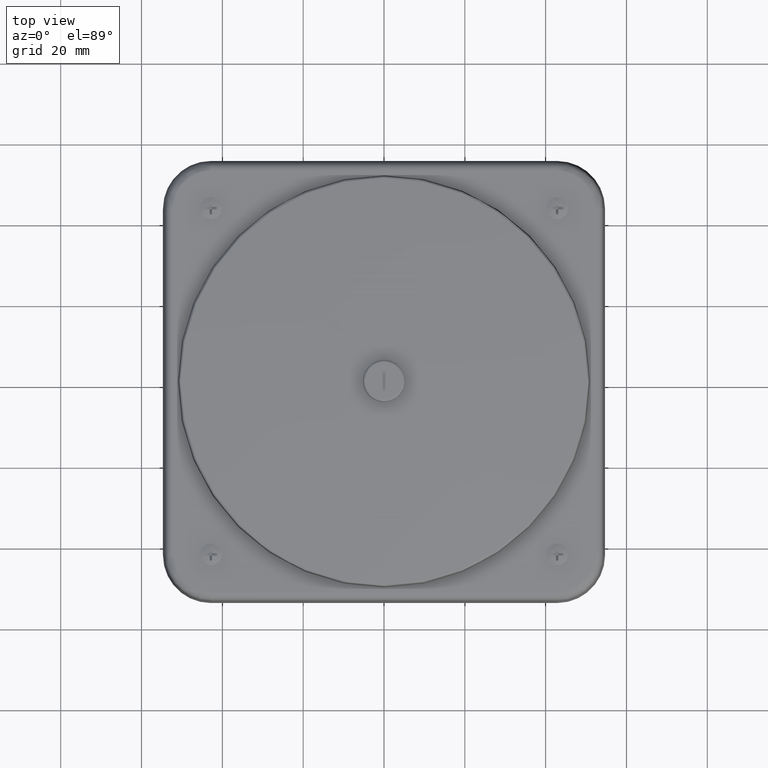
[diagram: clean part render]
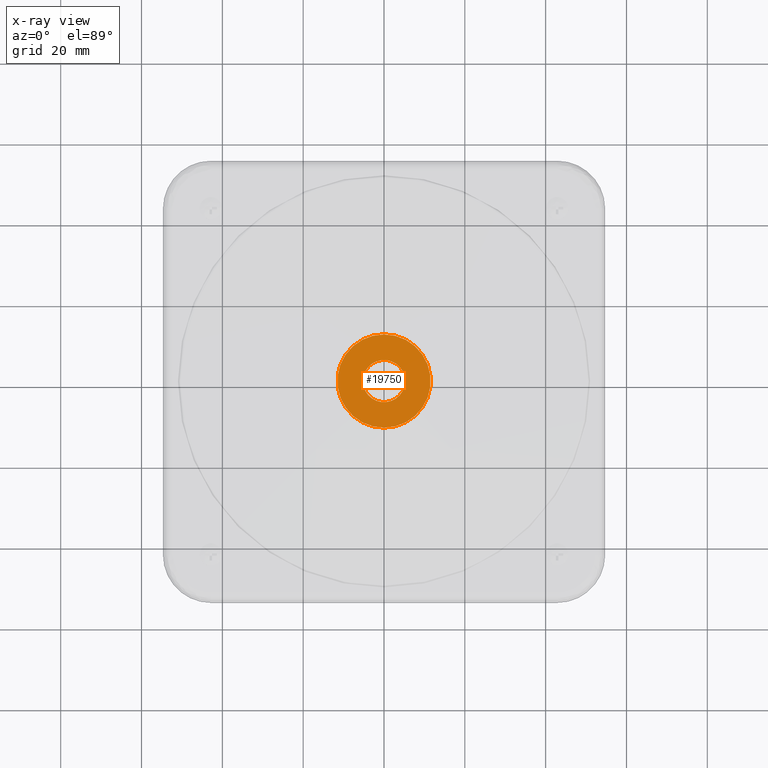
[diagram: x-ray — body ghosted, one internal face saturated and labeled with its STEP entity id]
A machine part, top view, then the same camera in x-ray: the body is ghosted and one INTERNAL B-rep face — a face not visible from any outside direction — is saturated and labeled: STEP entity #19750.
In plain terms, the highlighted planar face has unit normal (0, 0, 1).
Its self-contained STEP definition (entity closure, byte-faithful):
#372 = EDGE_LOOP ( 'NONE', ( #10909, #10132 ) ) ;
#617 = VERTEX_POINT ( 'NONE', #16533 ) ;
#931 = DIRECTION ( 'NONE',  ( 0.000000000000000000, 0.000000000000000000, 1.000000000000000000 ) ) ;
#1157 = DIRECTION ( 'NONE',  ( 0.000000000000000000, 0.000000000000000000, -1.000000000000000000 ) ) ;
#2047 = AXIS2_PLACEMENT_3D ( 'NONE', #19436, #1157, #6202 ) ;
#2175 = EDGE_LOOP ( 'NONE', ( #6548, #20258 ) ) ;
#2608 = AXIS2_PLACEMENT_3D ( 'NONE', #3167, #16200, #19375 ) ;
#2792 = DIRECTION ( 'NONE',  ( 1.000000000000000000, 0.000000000000000000, 0.000000000000000000 ) ) ;
#3167 = CARTESIAN_POINT ( 'NONE',  ( -2.731847993666074838E-15, -5.435836013389566810E-16, 2.559339538721059348 ) ) ;
#3424 = CARTESIAN_POINT ( 'NONE',  ( 2.956759690072473427E-10, -0.4544527542132097420, 2.559339538721059348 ) ) ;
#3682 = EDGE_CURVE ( 'NONE', #3976, #9559, #10302, .T. ) ;
#3976 = VERTEX_POINT ( 'NONE', #14012 ) ;
#4025 = CARTESIAN_POINT ( 'NONE',  ( -2.731847993664263613E-15, -5.463695987328543200E-16, 2.559339538721059348 ) ) ;
#4164 = DIRECTION ( 'NONE',  ( 0.000000000000000000, 0.000000000000000000, -1.000000000000000000 ) ) ;
#4584 = CARTESIAN_POINT ( 'NONE',  ( -2.797412345512204431E-15, 2.800144193505869651E-15, 2.559339538721795204 ) ) ;
#4598 = AXIS2_PLACEMENT_3D ( 'NONE', #4025, #931, #2792 ) ;
#4915 = CIRCLE ( 'NONE', #12288, 0.4544527542132086317 ) ;
#5865 = PLANE ( 'NONE',  #4598 ) ;
#6202 = DIRECTION ( 'NONE',  ( -1.000000000000000000, 0.000000000000000000, 0.000000000000000000 ) ) ;
#6548 = ORIENTED_EDGE ( 'NONE', *, *, #21061, .T. ) ;
#7886 = FACE_OUTER_BOUND ( 'NONE', #2175, .T. ) ;
#9559 = VERTEX_POINT ( 'NONE', #3424 ) ;
#10094 = CIRCLE ( 'NONE', #17403, 0.2058933543126791610 ) ;
#10132 = ORIENTED_EDGE ( 'NONE', *, *, #17254, .T. ) ;
#10302 = CIRCLE ( 'NONE', #2608, 0.4544527542132086317 ) ;
#10846 = DIRECTION ( 'NONE',  ( 1.195140789863510099E-25, -1.836909530700119911E-16, 1.000000000000000000 ) ) ;
#10909 = ORIENTED_EDGE ( 'NONE', *, *, #17692, .T. ) ;
#12288 = AXIS2_PLACEMENT_3D ( 'NONE', #19142, #10846, #15855 ) ;
#14012 = CARTESIAN_POINT ( 'NONE',  ( -2.956814883576456901E-10, 0.4544527542132086317, 2.559339538721059348 ) ) ;
#14554 = FACE_BOUND ( 'NONE', #372, .T. ) ;
#15855 = DIRECTION ( 'NONE',  ( 0.000000000000000000, 1.000000000000000000, 0.000000000000000000 ) ) ;
#16200 = DIRECTION ( 'NONE',  ( 1.195140789863510099E-25, -1.836909530700119911E-16, 1.000000000000000000 ) ) ;
#16533 = CARTESIAN_POINT ( 'NONE',  ( -0.2058933543126819643, 2.800144193505869651E-15, 2.559339538721795204 ) ) ;
#17254 = EDGE_CURVE ( 'NONE', #17394, #617, #10094, .T. ) ;
#17394 = VERTEX_POINT ( 'NONE', #19901 ) ;
#17403 = AXIS2_PLACEMENT_3D ( 'NONE', #4584, #4164, #19354 ) ;
#17692 = EDGE_CURVE ( 'NONE', #617, #17394, #20928, .T. ) ;
#19142 = CARTESIAN_POINT ( 'NONE',  ( -2.731847993666074838E-15, -5.435836013389566810E-16, 2.559339538721059348 ) ) ;
#19354 = DIRECTION ( 'NONE',  ( -1.000000000000000000, 0.000000000000000000, 0.000000000000000000 ) ) ;
#19375 = DIRECTION ( 'NONE',  ( 0.000000000000000000, 1.000000000000000000, 0.000000000000000000 ) ) ;
#19436 = CARTESIAN_POINT ( 'NONE',  ( -2.797412345512204431E-15, 2.800144193505869651E-15, 2.559339538721795204 ) ) ;
#19750 = ADVANCED_FACE ( 'NONE', ( #7886, #14554 ), #5865, .T. ) ;
#19901 = CARTESIAN_POINT ( 'NONE',  ( 0.2058933543126763577, 2.825358857238343151E-15, 2.559339538721795204 ) ) ;
#20258 = ORIENTED_EDGE ( 'NONE', *, *, #3682, .T. ) ;
#20928 = CIRCLE ( 'NONE', #2047, 0.2058933543126791610 ) ;
#21061 = EDGE_CURVE ( 'NONE', #9559, #3976, #4915, .T. ) ;